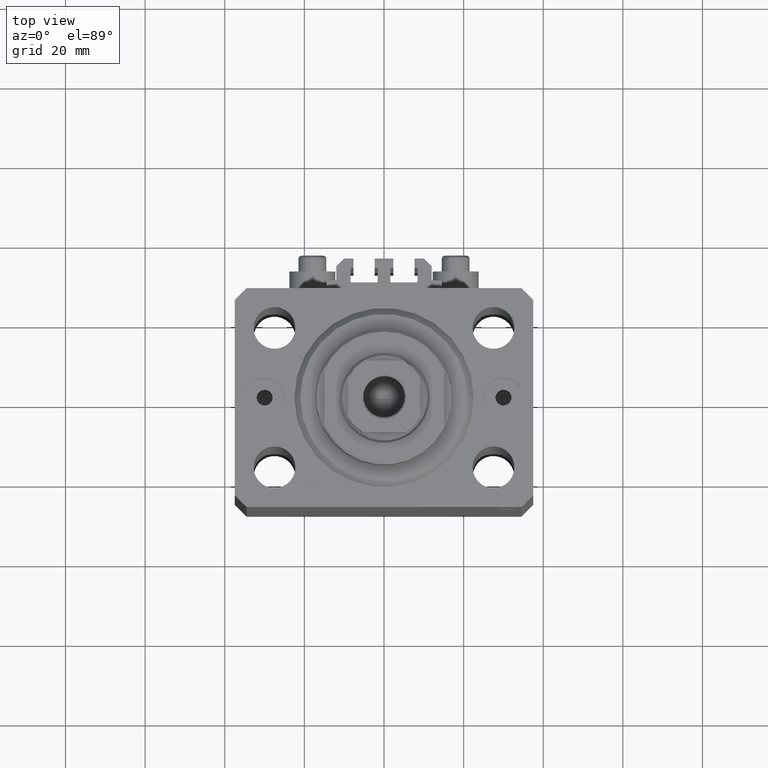
[diagram: clean part render]
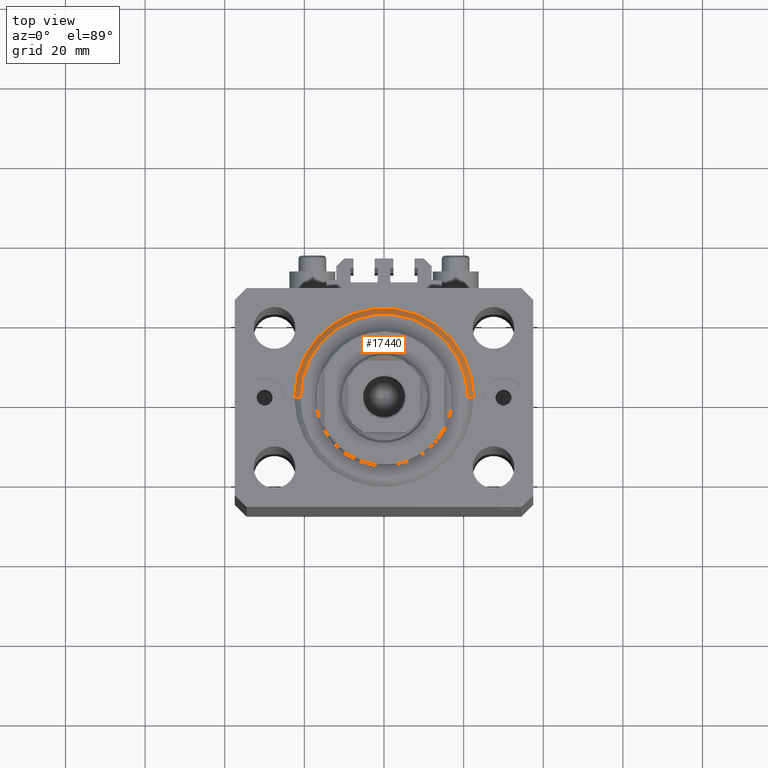
[diagram: same view with one face highlighted and labeled with its STEP entity id]
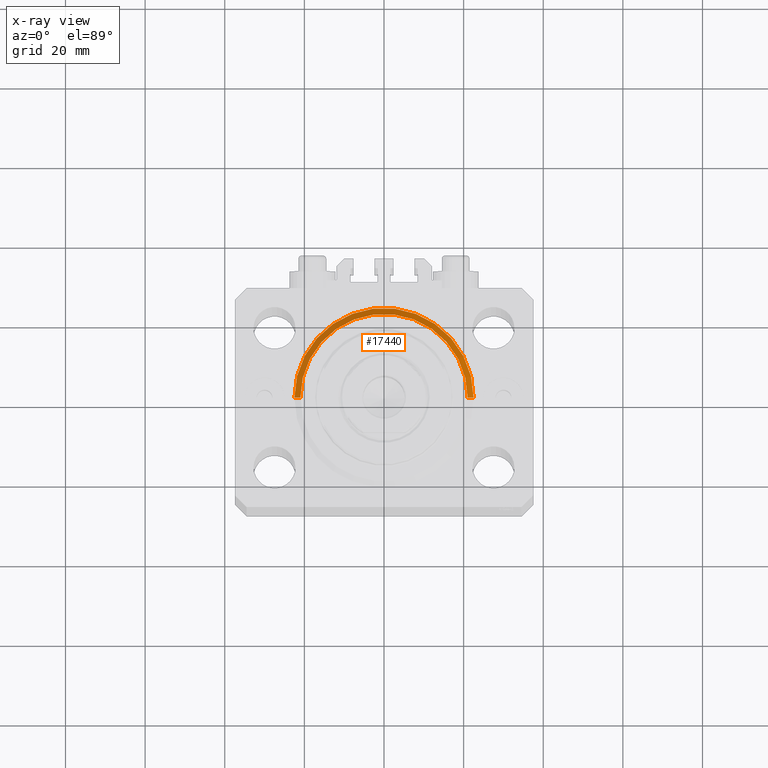
[diagram: x-ray of the same camera — body ghosted, the highlighted face saturated]
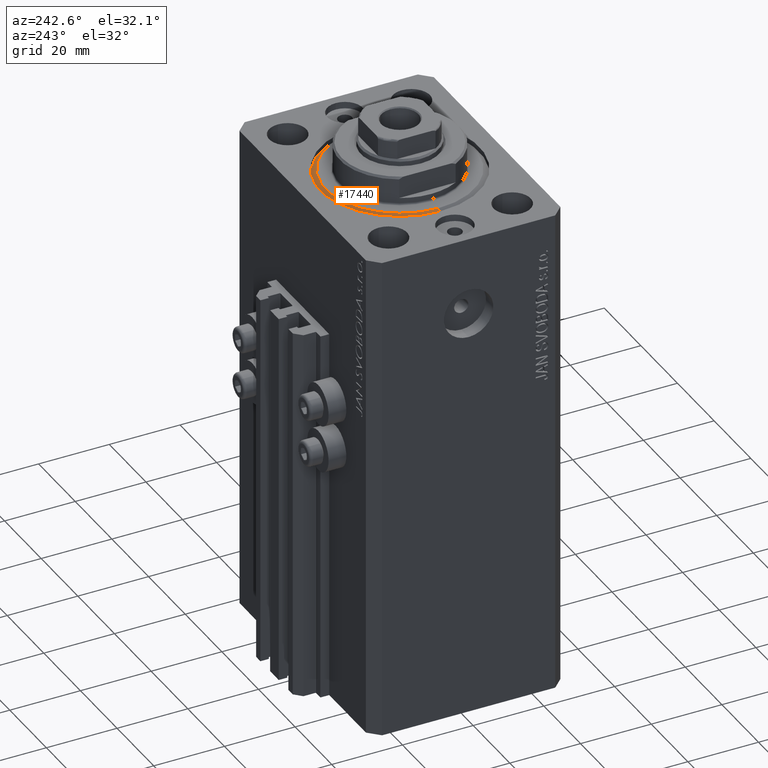
[diagram: same view with one face highlighted and labeled with its STEP entity id]
A machine part, top view. The second image highlights one B-rep face of the part: STEP entity #17440.
The next image is the same camera in x-ray: the body ghosted, the highlighted face saturated — about 0% of this face is hidden behind the body in this view.
A second angle (auxiliary view) of the same face is appended — the face is thin or edge-on in the first view.
In plain terms, the highlighted conical surface has half-angle 45 deg.
Its self-contained STEP definition (entity closure, byte-faithful):
#6 = AXIS2_PLACEMENT_3D ( 'NONE', #26536, #30118, #11249 ) ;
#843 = ORIENTED_EDGE ( 'NONE', *, *, #41064, .T. ) ;
#3613 = CONICAL_SURFACE ( 'NONE', #30315, 22.50000000000000355, 0.7853981633974517207 ) ;
#4134 = CARTESIAN_POINT ( 'NONE',  ( -22.50000000000000355, 2.755455298081545172E-15, 1.500000000000001332 ) ) ;
#4648 = VERTEX_POINT ( 'NONE', #19487 ) ;
#6510 = DIRECTION ( 'NONE',  ( -0.000000000000000000, -0.000000000000000000, -1.000000000000000000 ) ) ;
#6715 = VERTEX_POINT ( 'NONE', #9103 ) ;
#7538 = ORIENTED_EDGE ( 'NONE', *, *, #26957, .F. ) ;
#9103 = CARTESIAN_POINT ( 'NONE',  ( -20.99999999999998934, 2.663606788145492628E-15, 0.000000000000000000 ) ) ;
#10653 = AXIS2_PLACEMENT_3D ( 'NONE', #16076, #6510, #35630 ) ;
#11249 = DIRECTION ( 'NONE',  ( 1.000000000000000000, 0.000000000000000000, 0.000000000000000000 ) ) ;
#13824 = CARTESIAN_POINT ( 'NONE',  ( 22.50000000000000355, 2.755455298081545172E-15, 1.500000000000001332 ) ) ;
#15810 = LINE ( 'NONE', #19376, #39698 ) ;
#16076 = CARTESIAN_POINT ( 'NONE',  ( 0.000000000000000000, 0.000000000000000000, 0.000000000000000000 ) ) ;
#16516 = CARTESIAN_POINT ( 'NONE',  ( 20.99999999999998934, 0.000000000000000000, 0.000000000000000000 ) ) ;
#17440 = ADVANCED_FACE ( 'NONE', ( #33597 ), #3613, .T. ) ;
#19042 = CIRCLE ( 'NONE', #10653, 20.99999999999998934 ) ;
#19376 = CARTESIAN_POINT ( 'NONE',  ( 22.50000000000000355, 0.000000000000000000, 1.500000000000001332 ) ) ;
#19487 = CARTESIAN_POINT ( 'NONE',  ( -22.50000000000000355, 0.000000000000000000, 1.500000000000001332 ) ) ;
#20182 = VECTOR ( 'NONE', #46878, 1000.000000000000114 ) ;
#21104 = ORIENTED_EDGE ( 'NONE', *, *, #25209, .F. ) ;
#22835 = DIRECTION ( 'NONE',  ( -0.000000000000000000, -0.000000000000000000, 1.000000000000000000 ) ) ;
#24562 = EDGE_CURVE ( 'NONE', #42409, #4648, #41176, .T. ) ;
#25209 = EDGE_CURVE ( 'NONE', #6715, #30609, #19042, .T. ) ;
#26536 = CARTESIAN_POINT ( 'NONE',  ( 0.000000000000000000, 0.000000000000000000, 1.500000000000001332 ) ) ;
#26665 = DIRECTION ( 'NONE',  ( 1.000000000000000000, 0.000000000000000000, 0.000000000000000000 ) ) ;
#26957 = EDGE_CURVE ( 'NONE', #30609, #42409, #15810, .T. ) ;
#29453 = LINE ( 'NONE', #4134, #20182 ) ;
#30118 = DIRECTION ( 'NONE',  ( -0.000000000000000000, -0.000000000000000000, 1.000000000000000000 ) ) ;
#30315 = AXIS2_PLACEMENT_3D ( 'NONE', #40992, #22835, #26665 ) ;
#30609 = VERTEX_POINT ( 'NONE', #16516 ) ;
#33597 = FACE_OUTER_BOUND ( 'NONE', #43164, .T. ) ;
#35630 = DIRECTION ( 'NONE',  ( 1.000000000000000000, 0.000000000000000000, 0.000000000000000000 ) ) ;
#37305 = DIRECTION ( 'NONE',  ( 0.7071067811865500152, 0.000000000000000000, 0.7071067811865451302 ) ) ;
#39222 = ORIENTED_EDGE ( 'NONE', *, *, #24562, .F. ) ;
#39698 = VECTOR ( 'NONE', #37305, 1000.000000000000114 ) ;
#40992 = CARTESIAN_POINT ( 'NONE',  ( 0.000000000000000000, 0.000000000000000000, 1.500000000000001332 ) ) ;
#41064 = EDGE_CURVE ( 'NONE', #6715, #4648, #29453, .T. ) ;
#41176 = CIRCLE ( 'NONE', #6, 22.50000000000000355 ) ;
#42409 = VERTEX_POINT ( 'NONE', #13824 ) ;
#43164 = EDGE_LOOP ( 'NONE', ( #21104, #843, #39222, #7538 ) ) ;
#46878 = DIRECTION ( 'NONE',  ( -0.7071067811865500152, 8.659560562354963673E-17, 0.7071067811865451302 ) ) ;